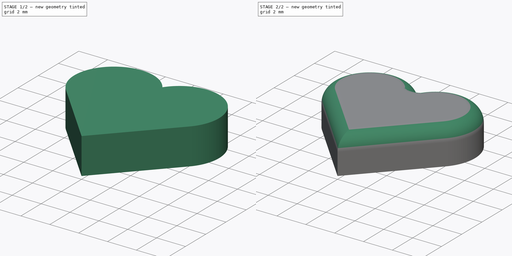
[diagram: build sequence overview — one tinted view per stage of 2, left to right]
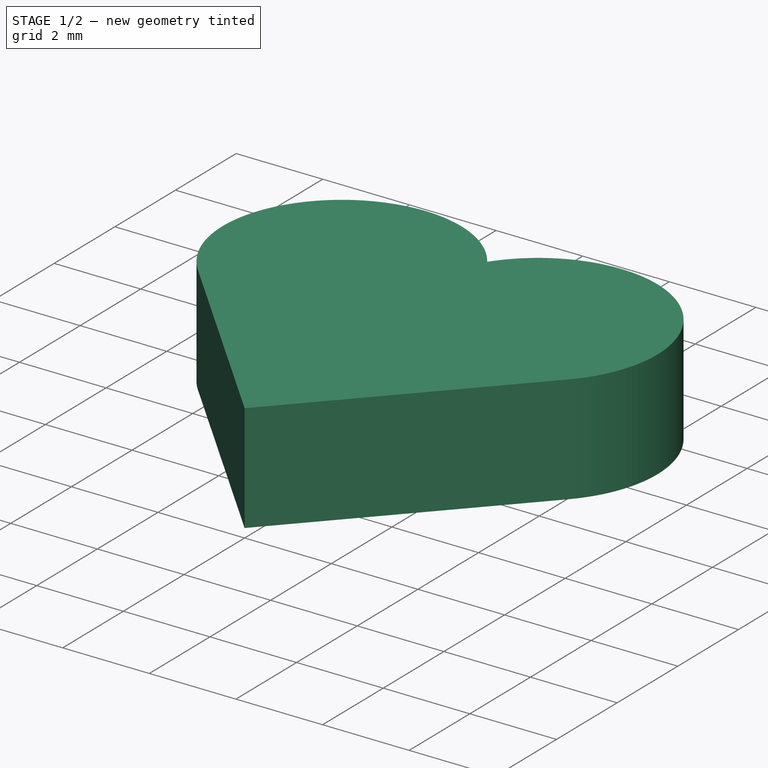
[diagram: stage 1 of 2 — iso view after this stage's code; geometry added in this stage tinted green]
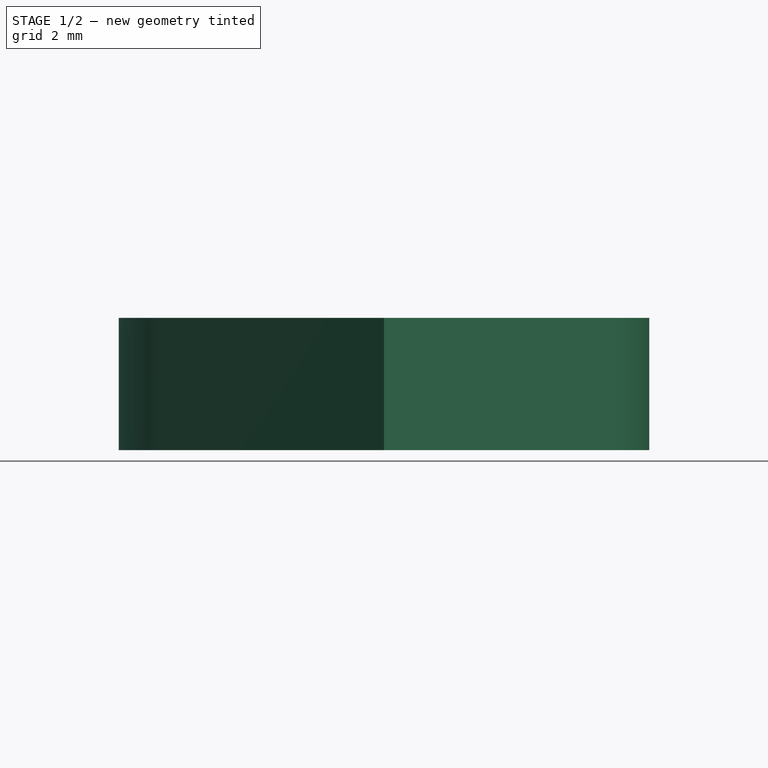
[diagram: stage 1 of 2 — front view after this stage's code; geometry added in this stage tinted green]
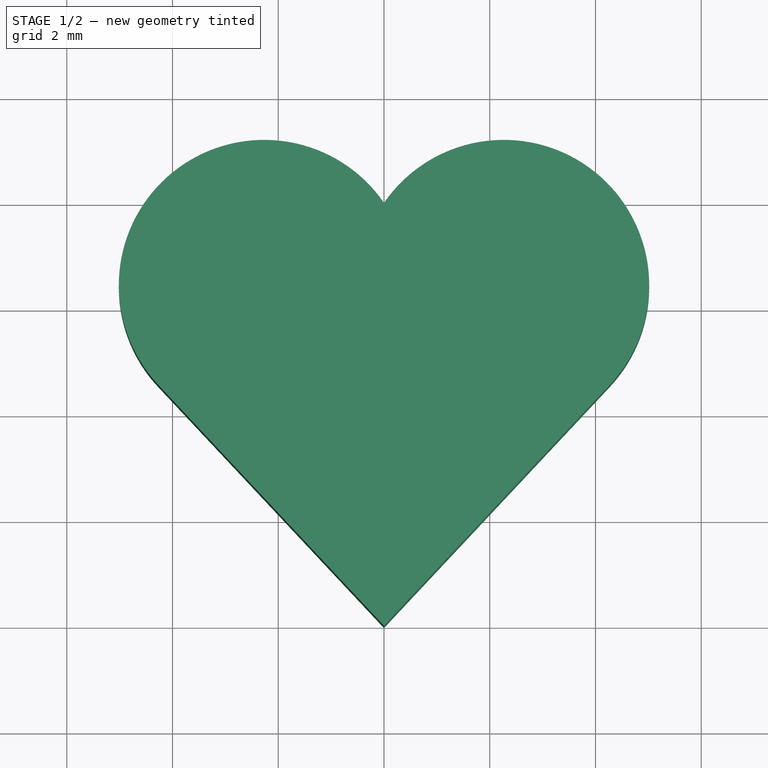
[diagram: stage 1 of 2 — top view after this stage's code; geometry added in this stage tinted green]
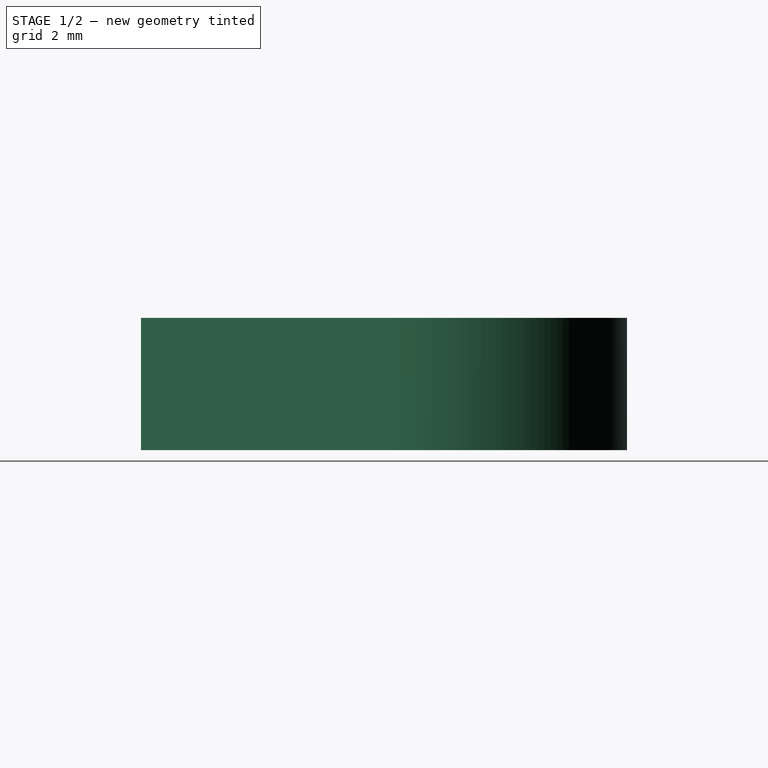
[diagram: stage 1 of 2 — right view after this stage's code; geometry added in this stage tinted green]
FCSTD DOCUMENT  (FreeCAD 0.15R4671 (Git))
Label: heart
License: All rights reserved
LicenseURL: http://en.wikipedia.org/wiki/All_rights_reserved
objects: Sketcher::SketchObject×1, PartDesign::Pad×1, PartDesign::Fillet×1
note: 4 computed .brp shape members not serialized (recipe doc carries the construction recipe); baked Part::Feature solids carry a one-line shape summary decoded from their .brp

FEATURE [Sketcher::SketchObject] Sketch
  sketch-geometry (4):
    g0: ArcOfCircle CenterX=-2.26567 CenterY=-1.5586 CenterZ=0 NormalX=0 NormalY=0 NormalZ=1 Radius=2.75 StartAngle=0.602574 EndAngle=3.89432
    g1: ArcOfCircle CenterX=2.26567 CenterY=-1.5586 CenterZ=0 NormalX=0 NormalY=0 NormalZ=1 Radius=2.75 StartAngle=5.53046 EndAngle=8.8222
    g2: LineSegment StartX=-4.2727 StartY=-3.43858 StartZ=0 EndX=0 EndY=-8 EndZ=0
    g3: LineSegment StartX=4.2727 StartY=-3.43858 StartZ=0 EndX=0 EndY=-8 EndZ=0
  constraints (13):
    c: Coincident(g1,g0)
    c: Symmetric(g1,g0,g-2)
    c: Equal(g0,g1)
    c: Coincident(g2,g0)
    c: Coincident(g3,g1)
    c: Coincident(g3,g2)
    c: PointOnObject(g2,g-2)
    c: Tangent(g3,g1)
    c: Equal(g2,g3)
    c: Coincident(g0,g-1)
    c: DistanceY(g2) = -8
    c: Distance(g3) = 6.25
    c: Radius(g1) = 2.75
FEATURE [PartDesign::Pad] Pad
  Length = 2.5
  Length2 = 100
  Sketch = -> Sketch
  Type = 0
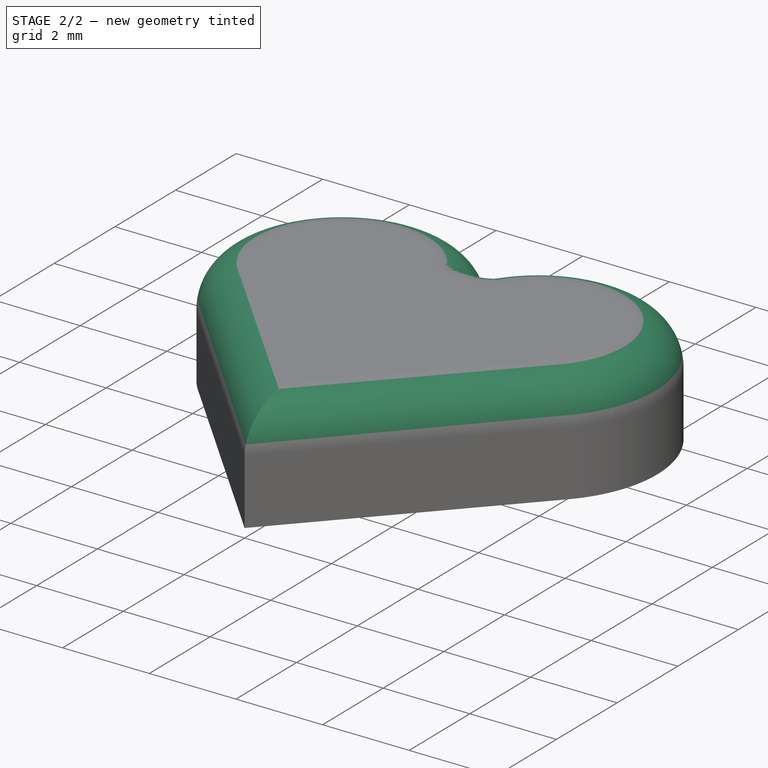
[diagram: stage 2 of 2 — iso view after this stage's code; geometry added in this stage tinted green]
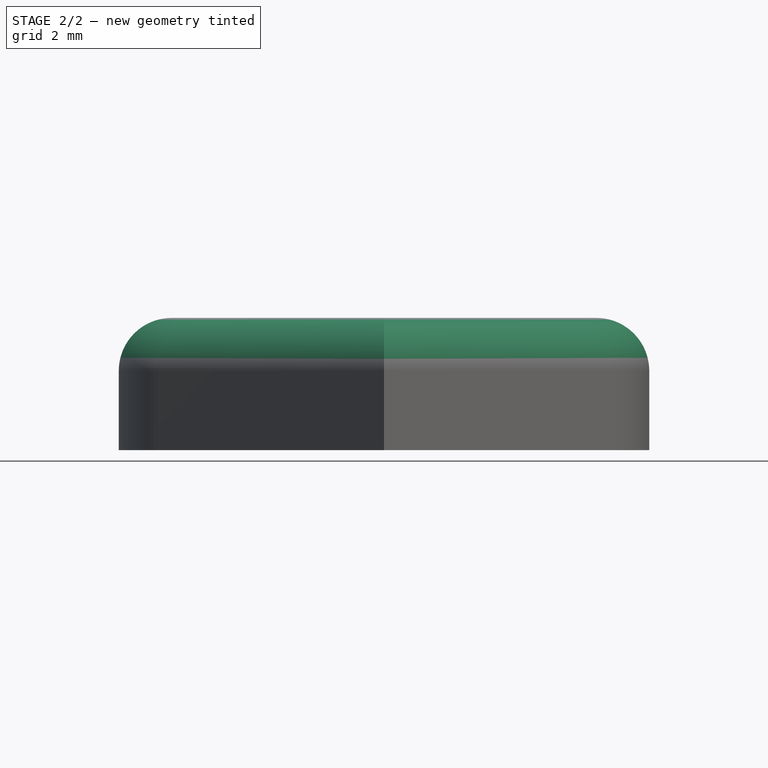
[diagram: stage 2 of 2 — front view after this stage's code; geometry added in this stage tinted green]
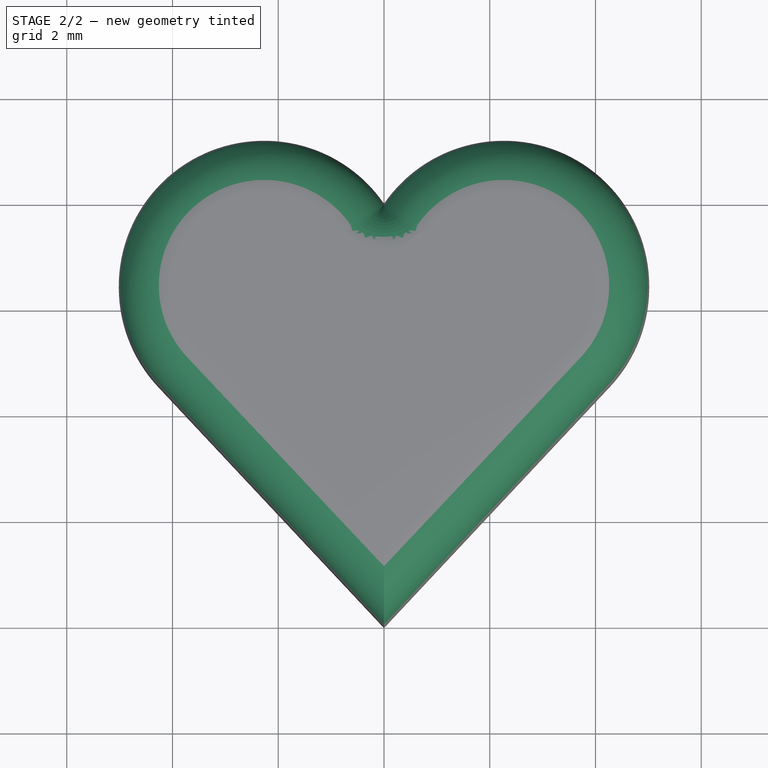
[diagram: stage 2 of 2 — top view after this stage's code; geometry added in this stage tinted green]
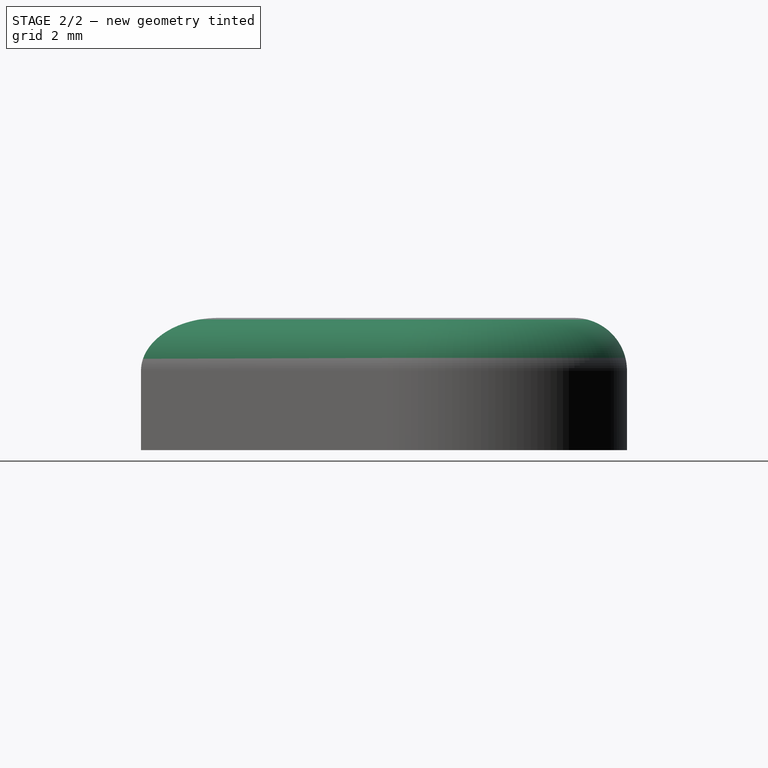
[diagram: stage 2 of 2 — right view after this stage's code; geometry added in this stage tinted green]
FEATURE [PartDesign::Fillet] Fillet
  Base = -> Pad [Edge4,Edge7,Edge10,Edge12]
  Radius = 1
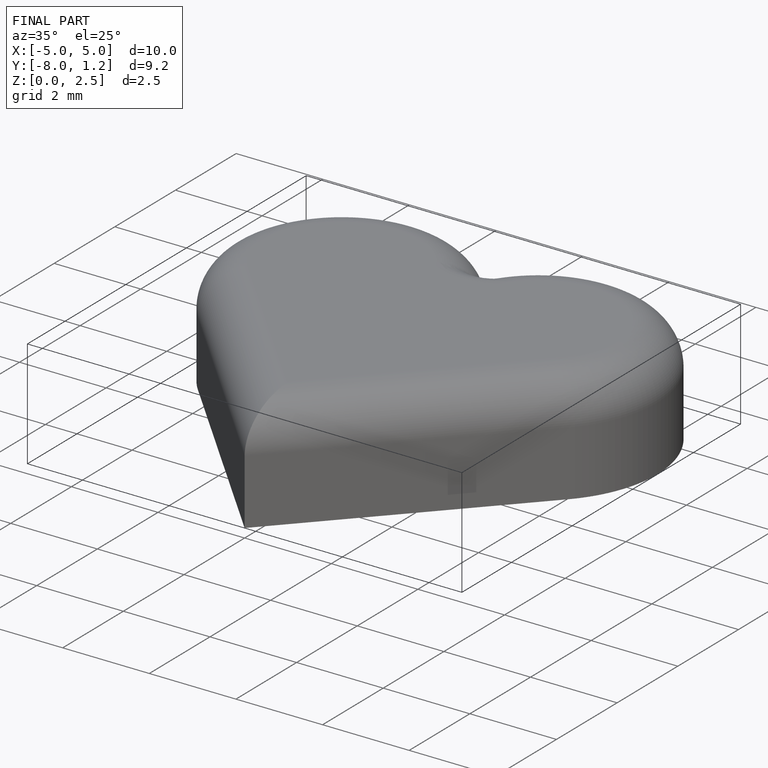
[diagram: finished part — iso view with bounding-box wireframe]
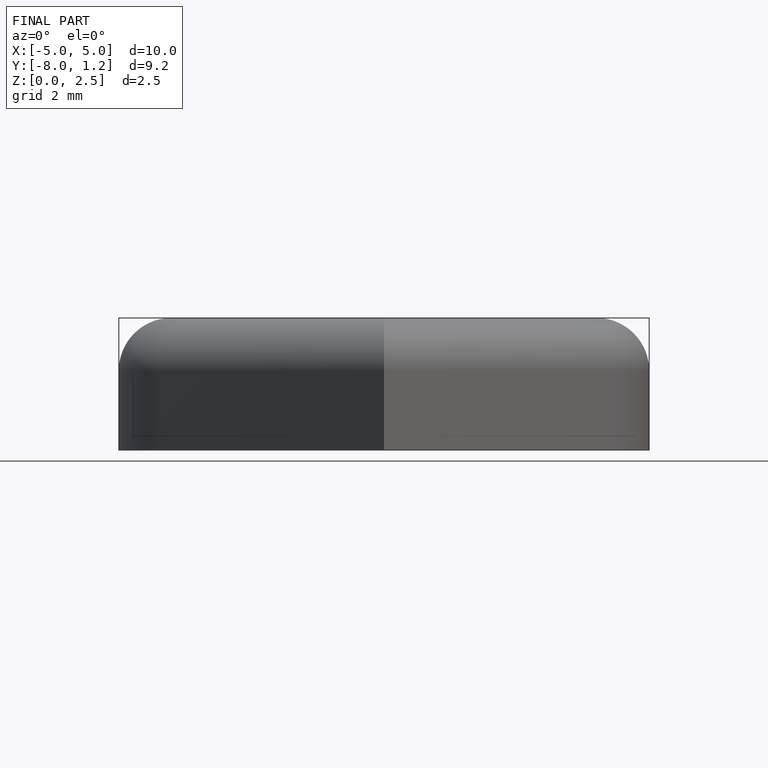
[diagram: finished part — front view with bounding-box wireframe]
